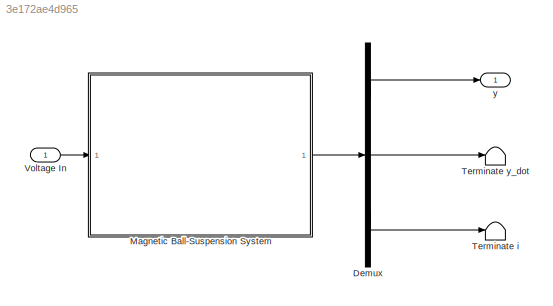
MODEL slx_3e172ae4d965
KIND model
CONFIG AbsTol = auto
CONFIG EnableMultiTasking = off
CONFIG FixedStep = auto
CONFIG MaxStep = auto
CONFIG MinStep = auto
CONFIG RelTol = 1e-3
CONFIG SampleTimeConstraint = Unconstrained
CONFIG SolverName = VariableStepAuto
CONFIG StartTime = 0.0
CONFIG StopTime = 10.0
BLOCK [Demux] Demux
  Outputs = 3
  Ports = [1, 3]
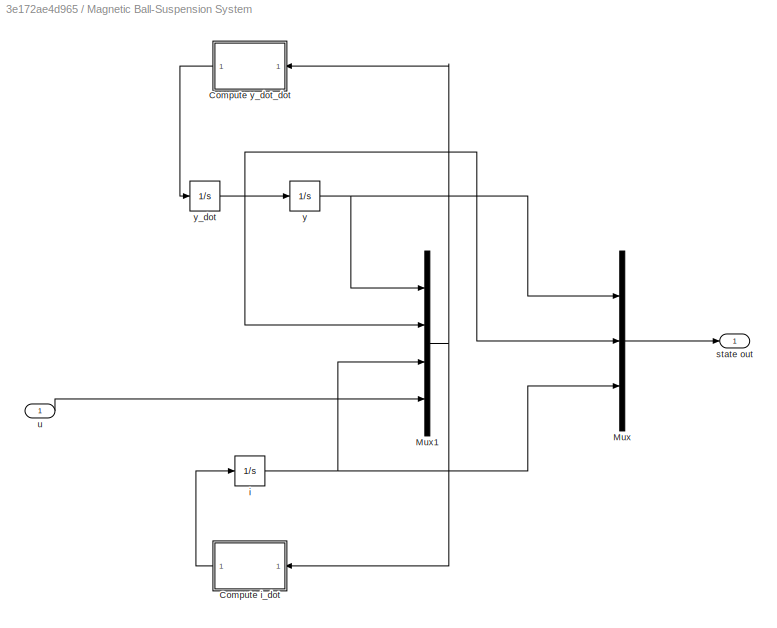
BLOCK [SubSystem] Magnetic Ball-Suspension System
  Ports = [1, 1]
  RequestExecContextInheritance = off
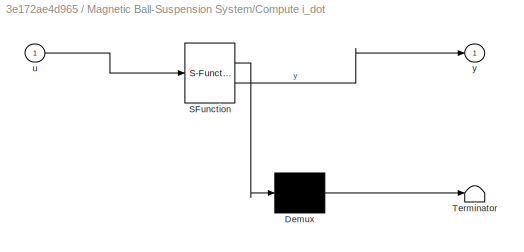
BLOCK [SubSystem] Magnetic Ball-Suspension System/Compute i_dot
  ErrorFcn = Stateflow.Translate.translate
  NameLocation = top
  PermitHierarchicalResolution = ExplicitOnly
  Ports = [1, 1]
  RequestExecContextInheritance = off
  SFBlockType = MATLAB Function
  TreatAsAtomicUnit = on
BLOCK [Demux] Magnetic Ball-Suspension System/Compute i_dot/ Demux 
  Outputs = 1
  Ports = [1, 1]
BLOCK [S-Function] Magnetic Ball-Suspension System/Compute i_dot/ SFunction 
  EnableBusSupport = on
  FunctionName = sf_sfun
  PortCounts = [1 2]
  Ports = [1, 2]
  SFcnIsStateOwnerBlock = off
  SFunctionDeploymentMode = off
  Tag = Stateflow S-Function 1
BLOCK [Terminator] Magnetic Ball-Suspension System/Compute i_dot/ Terminator 
BLOCK [Inport] Magnetic Ball-Suspension System/Compute i_dot/u
BLOCK [Outport] Magnetic Ball-Suspension System/Compute i_dot/y
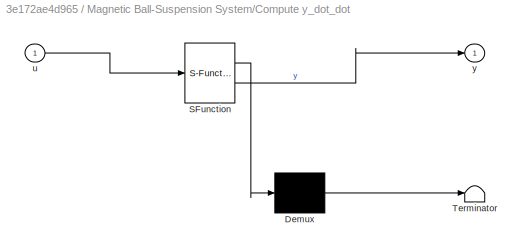
BLOCK [SubSystem] Magnetic Ball-Suspension System/Compute y_dot_dot
  ErrorFcn = Stateflow.Translate.translate
  NameLocation = top
  PermitHierarchicalResolution = ExplicitOnly
  Ports = [1, 1]
  RequestExecContextInheritance = off
  SFBlockType = MATLAB Function
  TreatAsAtomicUnit = on
BLOCK [Demux] Magnetic Ball-Suspension System/Compute y_dot_dot/ Demux 
  Outputs = 1
  Ports = [1, 1]
BLOCK [S-Function] Magnetic Ball-Suspension System/Compute y_dot_dot/ SFunction 
  EnableBusSupport = on
  FunctionName = sf_sfun
  PortCounts = [1 2]
  Ports = [1, 2]
  SFcnIsStateOwnerBlock = off
  SFunctionDeploymentMode = off
  Tag = Stateflow S-Function 2
BLOCK [Terminator] Magnetic Ball-Suspension System/Compute y_dot_dot/ Terminator 
BLOCK [Inport] Magnetic Ball-Suspension System/Compute y_dot_dot/u
BLOCK [Outport] Magnetic Ball-Suspension System/Compute y_dot_dot/y
BLOCK [Mux] Magnetic Ball-Suspension System/Mux
  DisplayOption = bar
  Inputs = 3
  Ports = [3, 1]
BLOCK [Mux] Magnetic Ball-Suspension System/Mux1
  DisplayOption = bar
  Ports = [4, 1]
BLOCK [Integrator] Magnetic Ball-Suspension System/i
  Ports = [1, 1]
BLOCK [Outport] Magnetic Ball-Suspension System/state out
BLOCK [Inport] Magnetic Ball-Suspension System/u
BLOCK [Integrator] Magnetic Ball-Suspension System/y
  Ports = [1, 1]
BLOCK [Integrator] Magnetic Ball-Suspension System/y_dot
  Ports = [1, 1]
BLOCK [Terminator] Terminate i
BLOCK [Terminator] Terminate y_dot
BLOCK [Inport] Voltage In
BLOCK [Outport] y
LINE Demux:1 -> y:1
LINE Demux:2 -> Terminate y_dot:1
LINE Demux:3 -> Terminate i:1
LINE Magnetic Ball-Suspension System/Compute i_dot:1 -> Magnetic Ball-Suspension System/i:1
LINE Magnetic Ball-Suspension System/Compute y_dot_dot:1 -> Magnetic Ball-Suspension System/y_dot:1
NET Magnetic Ball-Suspension System/Mux1:1 -> Magnetic Ball-Suspension System/Compute i_dot:1, Magnetic Ball-Suspension System/Compute y_dot_dot:1
LINE Magnetic Ball-Suspension System/Mux:1 -> Magnetic Ball-Suspension System/state out:1
NET Magnetic Ball-Suspension System/i:1 -> Magnetic Ball-Suspension System/Mux1:3, Magnetic Ball-Suspension System/Mux:3
LINE Magnetic Ball-Suspension System/u:1 -> Magnetic Ball-Suspension System/Mux1:4
NET Magnetic Ball-Suspension System/y:1 -> Magnetic Ball-Suspension System/Mux1:1, Magnetic Ball-Suspension System/Mux:1
NET Magnetic Ball-Suspension System/y_dot:1 -> Magnetic Ball-Suspension System/Mux1:2, Magnetic Ball-Suspension System/Mux:2, Magnetic Ball-Suspension System/y:1
LINE Magnetic Ball-Suspension System:1 -> Demux:1
LINE Voltage In:1 -> Magnetic Ball-Suspension System:1
note: NET lines group one-source signal fan-out (src -> all destinations, sorted); 1:1 wires keep LINE
CHART Magnetic Ball-Suspension System/Compute y_dot_dot states=1 transitions=1
  STATE_LABEL 'eML_blk_kernel()'
  STATE_LABEL 'SCRIPT:\nfunction y = fcn(u)\ny = 9.8-(u(3)^2)/(u(1)^2);\n'
CHART Magnetic Ball-Suspension System/Compute i_dot states=1 transitions=1
  STATE_LABEL 'eML_blk_kernel()'
  STATE_LABEL 'SCRIPT:\nfunction y = fcn(u)\ny = u(4)-3*u(3);\n'
CHART  states=0 transitions=0
CHART  states=0 transitions=0
